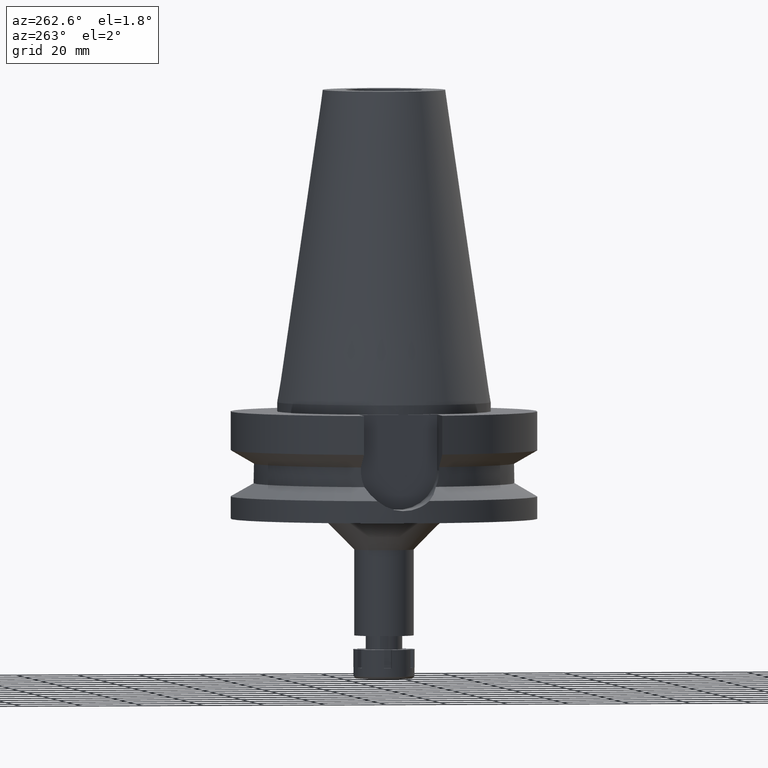
[diagram: clean part render]
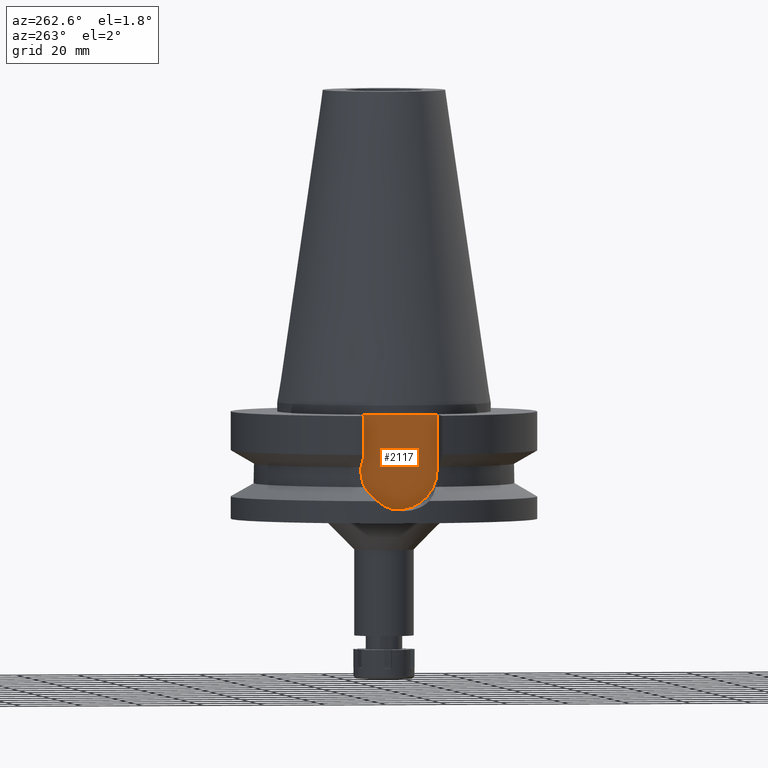
[diagram: same view with one face highlighted and labeled with its STEP entity id]
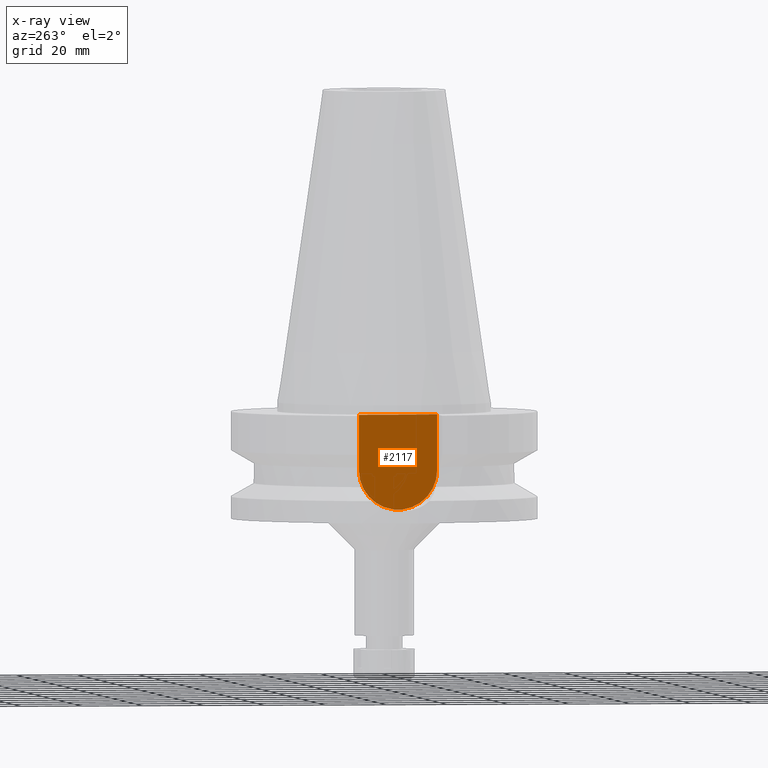
[diagram: x-ray of the same camera — body ghosted, the highlighted face saturated]
A machine part, auxiliary view. The second image highlights one B-rep face of the part: STEP entity #2117.
The next image is the same camera in x-ray: the body ghosted, the highlighted face saturated — about 0% of this face is hidden behind the body in this view.
In plain terms, the highlighted planar face has unit normal (-1, 0, 0).
Its self-contained STEP definition (entity closure, byte-faithful):
#114 = CARTESIAN_POINT ( 'NONE',  ( -35.39999999999999858, 12.84999999999999964, -21.14999999999999858 ) ) ;
#212 = CARTESIAN_POINT ( 'NONE',  ( -35.39999999999999858, 12.84999999999999964, -21.14999999999999858 ) ) ;
#310 = ORIENTED_EDGE ( 'NONE', *, *, #1925, .F. ) ;
#323 = VERTEX_POINT ( 'NONE', #802 ) ;
#345 = DIRECTION ( 'NONE',  ( 1.000000000000000000, 0.0000000000000000000, 0.0000000000000000000 ) ) ;
#380 = EDGE_LOOP ( 'NONE', ( #3487, #310, #3031, #1428 ) ) ;
#726 = CARTESIAN_POINT ( 'NONE',  ( -35.39999999999999858, 2.015768631397000034E-14, 0.0000000000000000000 ) ) ;
#802 = CARTESIAN_POINT ( 'NONE',  ( -35.39999999999999858, -12.84999999999999964, -3.000000000000000000 ) ) ;
#803 = AXIS2_PLACEMENT_3D ( 'NONE', #726, #1576, #1269 ) ;
#871 = DIRECTION ( 'NONE',  ( 0.0000000000000000000, 0.0000000000000000000, -1.000000000000000000 ) ) ;
#1074 = CARTESIAN_POINT ( 'NONE',  ( -35.39999999999999858, -12.84999999999999964, -21.14999999999999858 ) ) ;
#1101 = VECTOR ( 'NONE', #2175, 1000.000000000000000 ) ;
#1269 = DIRECTION ( 'NONE',  ( 0.0000000000000000000, 0.0000000000000000000, 1.000000000000000000 ) ) ;
#1279 = VERTEX_POINT ( 'NONE', #1972 ) ;
#1293 = LINE ( 'NONE', #114, #1101 ) ;
#1387 = LINE ( 'NONE', #2533, #1636 ) ;
#1428 = ORIENTED_EDGE ( 'NONE', *, *, #2558, .T. ) ;
#1453 = AXIS2_PLACEMENT_3D ( 'NONE', #1777, #345, #3226 ) ;
#1516 = PLANE ( 'NONE',  #803 ) ;
#1576 = DIRECTION ( 'NONE',  ( -1.000000000000000000, 0.0000000000000000000, 0.0000000000000000000 ) ) ;
#1636 = VECTOR ( 'NONE', #871, 1000.000000000000000 ) ;
#1777 = CARTESIAN_POINT ( 'NONE',  ( -35.39999999999999858, 1.497743035356999952E-14, -21.14999999999999858 ) ) ;
#1925 = EDGE_CURVE ( 'NONE', #2358, #3355, #3481, .T. ) ;
#1972 = CARTESIAN_POINT ( 'NONE',  ( -35.39999999999999858, 12.84999999999999964, -3.000000000000000000 ) ) ;
#2117 = ADVANCED_FACE ( 'NONE', ( #2702 ), #1516, .T. ) ;
#2175 = DIRECTION ( 'NONE',  ( 0.0000000000000000000, 0.0000000000000000000, 1.000000000000000000 ) ) ;
#2288 = VECTOR ( 'NONE', #2715, 1000.000000000000000 ) ;
#2358 = VERTEX_POINT ( 'NONE', #1074 ) ;
#2533 = CARTESIAN_POINT ( 'NONE',  ( -35.39999999999999858, -12.84999999999999964, -3.000000000000000000 ) ) ;
#2558 = EDGE_CURVE ( 'NONE', #323, #1279, #3575, .T. ) ;
#2702 = FACE_OUTER_BOUND ( 'NONE', #380, .T. ) ;
#2710 = EDGE_CURVE ( 'NONE', #3355, #1279, #1293, .T. ) ;
#2715 = DIRECTION ( 'NONE',  ( 0.0000000000000000000, 1.000000000000000000, 0.0000000000000000000 ) ) ;
#2878 = EDGE_CURVE ( 'NONE', #323, #2358, #1387, .T. ) ;
#3031 = ORIENTED_EDGE ( 'NONE', *, *, #2878, .F. ) ;
#3226 = DIRECTION ( 'NONE',  ( 0.0000000000000000000, -1.000000000000000000, 1.133982661338924476E-14 ) ) ;
#3279 = CARTESIAN_POINT ( 'NONE',  ( -35.39999999999999858, -12.84999999999999964, -3.000000000000000000 ) ) ;
#3355 = VERTEX_POINT ( 'NONE', #212 ) ;
#3481 = CIRCLE ( 'NONE', #1453, 12.84999999999999964 ) ;
#3487 = ORIENTED_EDGE ( 'NONE', *, *, #2710, .F. ) ;
#3575 = LINE ( 'NONE', #3279, #2288 ) ;